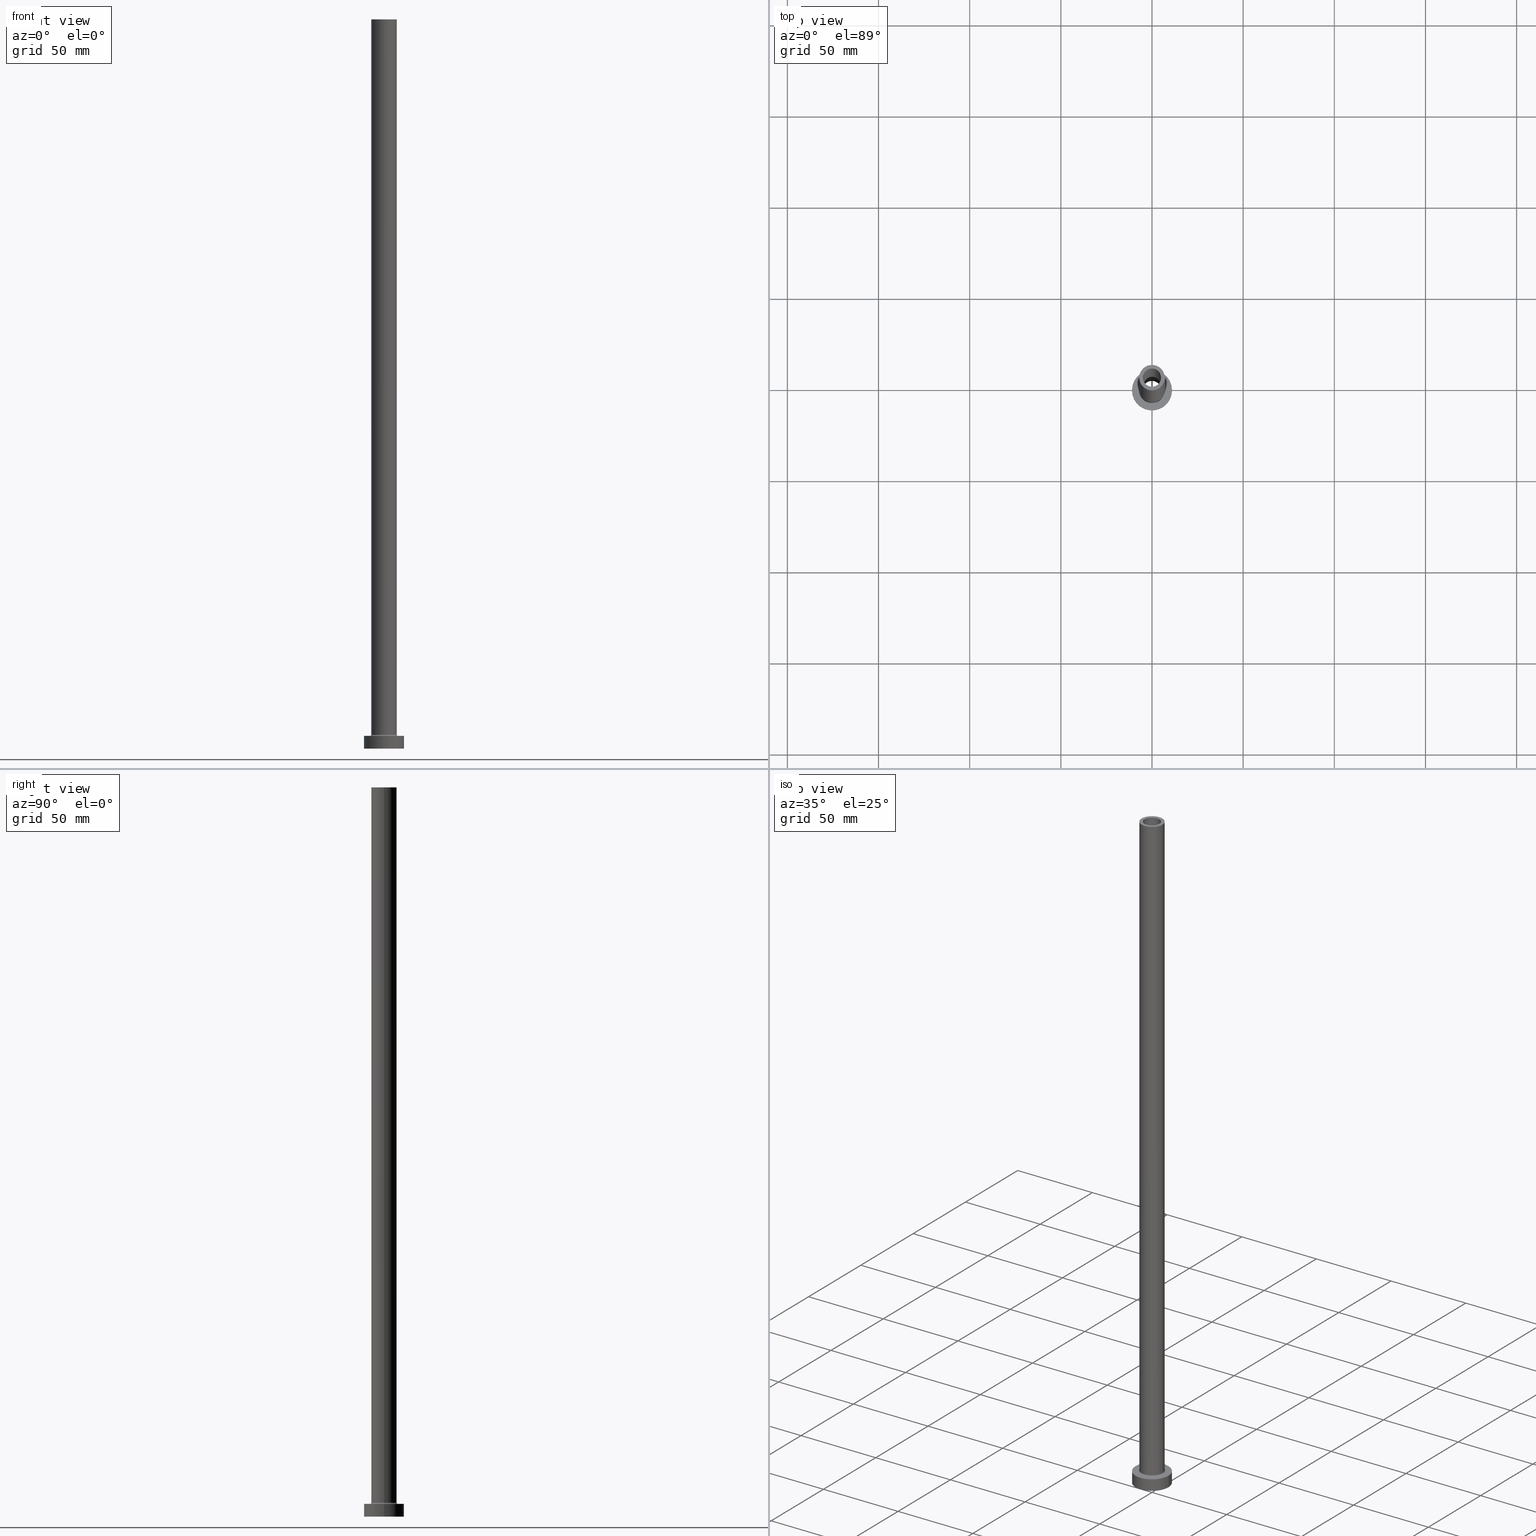
[diagram: canonical four-view strip — front | top / right | iso, engineering-drawing reading convention]
A machine part, canonical four-view strip (front | top / right | iso — engineering-drawing reading convention). The complete STEP part file that produces these views, byte-faithful:
ISO-10303-21;
HEADER;
FILE_DESCRIPTION (( 'STEP AP203' ),
    '1' );
FILE_NAME ('5fc1.STEP',
    '2023-02-13T10:06:38',
    ( '' ),
    ( '' ),
    'SwSTEP 2.0',
    'SolidWorks 2019',
    '' );
FILE_SCHEMA (( 'CONFIG_CONTROL_DESIGN' ));
ENDSEC;

DATA;
#1 = PERSON_AND_ORGANIZATION_ROLE ( 'design_owner' ) ;
#2 = ORIENTED_EDGE ( 'NONE', *, *, #397, .T. ) ;
#3 = EDGE_CURVE ( 'NONE', #28, #286, #308, .T. ) ;
#4 = DIRECTION ( 'NONE',  ( 0.000000000000000000, 0.000000000000000000, -1.000000000000000000 ) ) ;
#5 =( LENGTH_UNIT ( ) NAMED_UNIT ( * ) SI_UNIT ( .MILLI., .METRE. ) );
#6 = CARTESIAN_POINT ( 'NONE',  ( 0.000000000000000000, 0.000000000000000000, 355.0000000000000568 ) ) ;
#7 = CIRCLE ( 'NONE', #169, 5.000000000000000000 ) ;
#8 = AXIS2_PLACEMENT_3D ( 'NONE', #269, #91, #229 ) ;
#9 = APPROVAL_PERSON_ORGANIZATION ( #17, #247, #191 ) ;
#10 = CARTESIAN_POINT ( 'NONE',  ( 7.000000000000000888, 8.572527594031474176E-16, 400.0000000000000000 ) ) ;
#11 = FACE_OUTER_BOUND ( 'NONE', #349, .T. ) ;
#12 = DIRECTION ( 'NONE',  ( 0.000000000000000000, 0.000000000000000000, 1.000000000000000000 ) ) ;
#13 = ADVANCED_FACE ( 'NONE', ( #216 ), #292, .F. ) ;
#14 = AXIS2_PLACEMENT_3D ( 'NONE', #118, #245, #320 ) ;
#15 = CARTESIAN_POINT ( 'NONE',  ( 5.150000000000001243, 6.306931015608869596E-16, 0.000000000000000000 ) ) ;
#16 = EDGE_CURVE ( 'NONE', #79, #204, #105, .T. ) ;
#17 = PERSON_AND_ORGANIZATION ( #372, #279 ) ;
#18 = DIRECTION ( 'NONE',  ( -0.000000000000000000, -0.000000000000000000, -1.000000000000000000 ) ) ;
#19 = CARTESIAN_POINT ( 'NONE',  ( 11.00000000000000000, 1.347111479062088405E-15, 7.000000000000000000 ) ) ;
#20 = EDGE_CURVE ( 'NONE', #202, #414, #336, .T. ) ;
#21 = CIRCLE ( 'NONE', #221, 5.000000000000000000 ) ;
#22 = DIRECTION ( 'NONE',  ( 0.000000000000000000, 0.000000000000000000, 1.000000000000000000 ) ) ;
#23 = ORIENTED_EDGE ( 'NONE', *, *, #447, .T. ) ;
#24 = CARTESIAN_POINT ( 'NONE',  ( 5.000000000000000000, 6.123233995736765296E-16, 355.0000000000000568 ) ) ;
#25 = VERTEX_POINT ( 'NONE', #249 ) ;
#26 = ADVANCED_BREP_SHAPE_REPRESENTATION ( '5fc1', ( #370, #14 ), #95 ) ;
#27 = FACE_BOUND ( 'NONE', #92, .T. ) ;
#28 = VERTEX_POINT ( 'NONE', #426 ) ;
#29 = FACE_BOUND ( 'NONE', #417, .T. ) ;
#30 = EDGE_LOOP ( 'NONE', ( #185, #378 ) ) ;
#31 = DATE_AND_TIME ( #214, #162 ) ;
#32 = ORIENTED_EDGE ( 'NONE', *, *, #280, .F. ) ;
#33 = DIRECTION ( 'NONE',  ( -0.000000000000000000, -0.000000000000000000, -1.000000000000000000 ) ) ;
#34 = CC_DESIGN_PERSON_AND_ORGANIZATION_ASSIGNMENT ( #339, #258, ( #47 ) ) ;
#35 = VERTEX_POINT ( 'NONE', #77 ) ;
#36 = PERSON_AND_ORGANIZATION ( #372, #279 ) ;
#37 = DIRECTION ( 'NONE',  ( 1.000000000000000000, 0.000000000000000000, 0.000000000000000000 ) ) ;
#38 = CIRCLE ( 'NONE', #302, 7.000000000000000888 ) ;
#39 = PERSON_AND_ORGANIZATION ( #372, #279 ) ;
#40 = EDGE_LOOP ( 'NONE', ( #218, #455 ) ) ;
#41 = CARTESIAN_POINT ( 'NONE',  ( -7.700000000000001066, 9.429780353434621002E-16, 7.699999999999985079 ) ) ;
#42 = DIRECTION ( 'NONE',  ( 1.000000000000000000, 0.000000000000000000, 0.000000000000000000 ) ) ;
#43 = PRODUCT_RELATED_PRODUCT_CATEGORY ( 'detail', '', ( #120 ) ) ;
#44 = DIRECTION ( 'NONE',  ( 1.000000000000000000, 0.000000000000000000, 0.000000000000000000 ) ) ;
#45 = AXIS2_PLACEMENT_3D ( 'NONE', #393, #325, #37 ) ;
#46 = AXIS2_PLACEMENT_3D ( 'NONE', #59, #173, #273 ) ;
#47 = SECURITY_CLASSIFICATION ( '', '', #402 ) ;
#48 = DIRECTION ( 'NONE',  ( 1.000000000000000000, 0.000000000000000000, 0.000000000000000000 ) ) ;
#49 = CARTESIAN_POINT ( 'NONE',  ( 5.000000000000000000, 6.123233995736765296E-16, 400.0000000000000000 ) ) ;
#50 = ADVANCED_FACE ( 'NONE', ( #107 ), #361, .F. ) ;
#51 = DIRECTION ( 'NONE',  ( 0.000000000000000000, 0.000000000000000000, 1.000000000000000000 ) ) ;
#52 = CIRCLE ( 'NONE', #154, 11.00000000000000000 ) ;
#53 = CIRCLE ( 'NONE', #124, 7.700000000000001066 ) ;
#54 = CARTESIAN_POINT ( 'NONE',  ( 0.000000000000000000, 0.000000000000000000, 400.0000000000000000 ) ) ;
#55 = DIRECTION ( 'NONE',  ( 1.000000000000000000, 0.000000000000000000, -0.000000000000000000 ) ) ;
#56 = EDGE_CURVE ( 'NONE', #414, #202, #293, .T. ) ;
#57 = CC_DESIGN_PERSON_AND_ORGANIZATION_ASSIGNMENT ( #363, #248, ( #109 ) ) ;
#58 = EDGE_CURVE ( 'NONE', #286, #28, #52, .T. ) ;
#59 = CARTESIAN_POINT ( 'NONE',  ( 0.000000000000000000, 0.000000000000000000, 369.5663996924429284 ) ) ;
#60 = ORIENTED_EDGE ( 'NONE', *, *, #412, .F. ) ;
#61 = CC_DESIGN_SECURITY_CLASSIFICATION ( #47, ( #69 ) ) ;
#62 = AXIS2_PLACEMENT_3D ( 'NONE', #283, #178, #167 ) ;
#63 = CARTESIAN_POINT ( 'NONE',  ( 11.00000000000000000, 1.347111479062088405E-15, 7.000000000000000000 ) ) ;
#64 = CARTESIAN_POINT ( 'NONE',  ( 0.000000000000000000, 0.000000000000000000, 7.699999999999985079 ) ) ;
#65 = ORIENTED_EDGE ( 'NONE', *, *, #215, .T. ) ;
#66 = LINE ( 'NONE', #137, #184 ) ;
#67 = ORIENTED_EDGE ( 'NONE', *, *, #3, .F. ) ;
#68 = ORIENTED_EDGE ( 'NONE', *, *, #20, .F. ) ;
#69 = PRODUCT_DEFINITION_FORMATION_WITH_SPECIFIED_SOURCE ( 'LIBOVOLN�', '', #120, .NOT_KNOWN. ) ;
#70 = APPROVAL_ROLE ( '' ) ;
#71 = CARTESIAN_POINT ( 'NONE',  ( 0.000000000000000000, 0.000000000000000000, 400.0000000000000000 ) ) ;
#72 = EDGE_CURVE ( 'NONE', #354, #25, #7, .T. ) ;
#73 = ORIENTED_EDGE ( 'NONE', *, *, #264, .F. ) ;
#74 = APPROVAL_STATUS ( 'not_yet_approved' ) ;
#75 = VERTEX_POINT ( 'NONE', #319 ) ;
#76 = DIRECTION ( 'NONE',  ( -1.000000000000000000, 1.224646799147351975E-16, 0.000000000000000000 ) ) ;
#77 = CARTESIAN_POINT ( 'NONE',  ( -7.000000000000000888, 0.000000000000000000, 400.0000000000000000 ) ) ;
#78 = EDGE_CURVE ( 'NONE', #288, #142, #227, .T. ) ;
#79 = VERTEX_POINT ( 'NONE', #15 ) ;
#80 = CARTESIAN_POINT ( 'NONE',  ( 0.000000000000000000, 0.000000000000000000, 355.0000000000000568 ) ) ;
#81 = AXIS2_PLACEMENT_3D ( 'NONE', #246, #211, #359 ) ;
#82 = DATE_TIME_ROLE ( 'classification_date' ) ;
#83 = CARTESIAN_POINT ( 'NONE',  ( -7.000000000000000888, 0.000000000000000000, 400.0000000000000000 ) ) ;
#84 = DIRECTION ( 'NONE',  ( 0.000000000000000000, 0.000000000000000000, -1.000000000000000000 ) ) ;
#85 = DIRECTION ( 'NONE',  ( 1.000000000000000000, 0.000000000000000000, 0.000000000000000000 ) ) ;
#86 = EDGE_CURVE ( 'NONE', #288, #25, #127, .T. ) ;
#87 = AXIS2_PLACEMENT_3D ( 'NONE', #251, #422, #213 ) ;
#88 = AXIS2_PLACEMENT_3D ( 'NONE', #350, #197, #133 ) ;
#89 = CARTESIAN_POINT ( 'NONE',  ( -5.000000000000000000, 0.000000000000000000, 400.0000000000000000 ) ) ;
#90 = CC_DESIGN_DATE_AND_TIME_ASSIGNMENT ( #126, #82, ( #47 ) ) ;
#91 = DIRECTION ( 'NONE',  ( -0.000000000000000000, -0.000000000000000000, -1.000000000000000000 ) ) ;
#92 = EDGE_LOOP ( 'NONE', ( #119, #419 ) ) ;
#93 = CARTESIAN_POINT ( 'NONE',  ( 7.000000000000000888, 8.572527594031474176E-16, 7.699999999999985079 ) ) ;
#94 = VERTEX_POINT ( 'NONE', #10 ) ;
#95 =( GEOMETRIC_REPRESENTATION_CONTEXT ( 3 ) GLOBAL_UNCERTAINTY_ASSIGNED_CONTEXT ( ( #99 ) ) GLOBAL_UNIT_ASSIGNED_CONTEXT ( ( #5, #427, #430 ) ) REPRESENTATION_CONTEXT ( 'NONE', 'WORKASPACE' ) );
#96 = EDGE_CURVE ( 'NONE', #75, #136, #323, .T. ) ;
#97 = FACE_OUTER_BOUND ( 'NONE', #98, .T. ) ;
#98 = EDGE_LOOP ( 'NONE', ( #311, #386, #102, #172 ) ) ;
#99 = UNCERTAINTY_MEASURE_WITH_UNIT (LENGTH_MEASURE( 1.000000000000000082E-05 ), #5, 'distance_accuracy_value', 'NONE');
#100 = EDGE_CURVE ( 'NONE', #94, #35, #344, .T. ) ;
#101 = PLANE ( 'NONE',  #62 ) ;
#102 = ORIENTED_EDGE ( 'NONE', *, *, #373, .T. ) ;
#103 = CYLINDRICAL_SURFACE ( 'NONE', #207, 7.000000000000000888 ) ;
#104 = ORIENTED_EDGE ( 'NONE', *, *, #219, .T. ) ;
#105 = CIRCLE ( 'NONE', #294, 5.150000000000001243 ) ;
#106 = VECTOR ( 'NONE', #267, 1000.000000000000000 ) ;
#107 = FACE_OUTER_BOUND ( 'NONE', #424, .T. ) ;
#108 = ADVANCED_FACE ( 'NONE', ( #340, #165 ), #403, .F. ) ;
#109 = PRODUCT_DEFINITION ( 'NEZN�M�', '', #69, #257 ) ;
#110 = ADVANCED_FACE ( 'NONE', ( #306 ), #371, .F. ) ;
#111 = APPROVAL_DATE_TIME ( #31, #241 ) ;
#112 = DIRECTION ( 'NONE',  ( 1.000000000000000000, 0.000000000000000000, 0.000000000000000000 ) ) ;
#113 = PERSON_AND_ORGANIZATION_ROLE ( 'design_supplier' ) ;
#114 = VERTEX_POINT ( 'NONE', #266 ) ;
#115 = APPLICATION_PROTOCOL_DEFINITION ( 'international standard', 'config_control_design', 1994, #276 ) ;
#116 = EDGE_LOOP ( 'NONE', ( #380, #68 ) ) ;
#117 = VECTOR ( 'NONE', #226, 1000.000000000000000 ) ;
#118 = CARTESIAN_POINT ( 'NONE',  ( 0.000000000000000000, 0.000000000000000000, 0.000000000000000000 ) ) ;
#119 = ORIENTED_EDGE ( 'NONE', *, *, #382, .F. ) ;
#120 = PRODUCT ( '5fc1', '5fc1', '', ( #253 ) ) ;
#121 = DIRECTION ( 'NONE',  ( 1.000000000000000000, 0.000000000000000000, 0.000000000000000000 ) ) ;
#122 = CYLINDRICAL_SURFACE ( 'NONE', #453, 11.00000000000000000 ) ;
#123 = EDGE_CURVE ( 'NONE', #142, #288, #21, .T. ) ;
#124 = AXIS2_PLACEMENT_3D ( 'NONE', #454, #418, #239 ) ;
#125 = EDGE_CURVE ( 'NONE', #25, #354, #156, .T. ) ;
#126 = DATE_AND_TIME ( #164, #168 ) ;
#127 = LINE ( 'NONE', #89, #396 ) ;
#128 = CALENDAR_DATE ( 2023, 13, 2 ) ;
#129 = DIRECTION ( 'NONE',  ( 0.000000000000000000, 0.000000000000000000, -1.000000000000000000 ) ) ;
#130 = CARTESIAN_POINT ( 'NONE',  ( -11.00000000000000000, 0.000000000000000000, 7.000000000000000000 ) ) ;
#131 = CC_DESIGN_PERSON_AND_ORGANIZATION_ASSIGNMENT ( #425, #113, ( #69 ) ) ;
#132 = AXIS2_PLACEMENT_3D ( 'NONE', #291, #33, #324 ) ;
#133 = DIRECTION ( 'NONE',  ( 1.000000000000000000, 0.000000000000000000, 0.000000000000000000 ) ) ;
#134 = EDGE_LOOP ( 'NONE', ( #394, #313, #255, #452 ) ) ;
#135 = FACE_OUTER_BOUND ( 'NONE', #151, .T. ) ;
#136 = VERTEX_POINT ( 'NONE', #404 ) ;
#137 = CARTESIAN_POINT ( 'NONE',  ( 7.000000000000000888, 8.572527594031474176E-16, 400.0000000000000000 ) ) ;
#138 = ORIENTED_EDGE ( 'NONE', *, *, #3, .T. ) ;
#139 = EDGE_CURVE ( 'NONE', #414, #204, #337, .T. ) ;
#140 = AXIS2_PLACEMENT_3D ( 'NONE', #358, #328, #366 ) ;
#141 = DIRECTION ( 'NONE',  ( -1.000000000000000000, 0.000000000000000000, 0.000000000000000000 ) ) ;
#142 = VERTEX_POINT ( 'NONE', #407 ) ;
#143 = PLANE ( 'NONE',  #439 ) ;
#144 = ORIENTED_EDGE ( 'NONE', *, *, #397, .F. ) ;
#145 = COORDINATED_UNIVERSAL_TIME_OFFSET ( 1, 0, .AHEAD. ) ;
#146 = ORIENTED_EDGE ( 'NONE', *, *, #347, .F. ) ;
#147 = AXIS2_PLACEMENT_3D ( 'NONE', #375, #18, #194 ) ;
#148 = CARTESIAN_POINT ( 'NONE',  ( 0.000000000000000000, 0.000000000000000000, 0.000000000000000000 ) ) ;
#149 = APPROVAL_ROLE ( '' ) ;
#150 = ORIENTED_EDGE ( 'NONE', *, *, #58, .T. ) ;
#151 = EDGE_LOOP ( 'NONE', ( #73, #351, #315, #271 ) ) ;
#152 = CC_DESIGN_APPROVAL ( #241, ( #109 ) ) ;
#153 = DIRECTION ( 'NONE',  ( 1.000000000000000000, 0.000000000000000000, 0.000000000000000000 ) ) ;
#154 = AXIS2_PLACEMENT_3D ( 'NONE', #256, #188, #329 ) ;
#155 = DIRECTION ( 'NONE',  ( 0.000000000000000000, 0.000000000000000000, 1.000000000000000000 ) ) ;
#156 = CIRCLE ( 'NONE', #401, 5.000000000000000000 ) ;
#157 = VECTOR ( 'NONE', #84, 1000.000000000000000 ) ;
#158 = FACE_OUTER_BOUND ( 'NONE', #450, .T. ) ;
#159 = ADVANCED_FACE ( 'NONE', ( #11 ), #122, .T. ) ;
#160 = DIRECTION ( 'NONE',  ( 1.000000000000000000, 0.000000000000000000, -0.000000000000000000 ) ) ;
#161 = DIRECTION ( 'NONE',  ( 0.000000000000000000, 0.000000000000000000, 1.000000000000000000 ) ) ;
#162 = LOCAL_TIME ( 11, 6, 38.00000000000000000, #353 ) ;
#163 = AXIS2_PLACEMENT_3D ( 'NONE', #242, #22, #55 ) ;
#164 = CALENDAR_DATE ( 2023, 13, 2 ) ;
#165 = FACE_OUTER_BOUND ( 'NONE', #116, .T. ) ;
#166 = CARTESIAN_POINT ( 'NONE',  ( -7.700000000000001066, 9.429780353434621002E-16, 6.999999999999992006 ) ) ;
#167 = DIRECTION ( 'NONE',  ( 1.000000000000000000, 0.000000000000000000, -0.000000000000000000 ) ) ;
#168 = LOCAL_TIME ( 11, 6, 38.00000000000000000, #265 ) ;
#169 = AXIS2_PLACEMENT_3D ( 'NONE', #6, #399, #44 ) ;
#170 = LOCAL_TIME ( 11, 6, 38.00000000000000000, #145 ) ;
#171 = DIRECTION ( 'NONE',  ( -0.000000000000000000, -0.000000000000000000, -1.000000000000000000 ) ) ;
#172 = ORIENTED_EDGE ( 'NONE', *, *, #215, .F. ) ;
#173 = DIRECTION ( 'NONE',  ( 0.000000000000000000, 0.000000000000000000, -1.000000000000000000 ) ) ;
#174 = ORIENTED_EDGE ( 'NONE', *, *, #447, .F. ) ;
#175 = CARTESIAN_POINT ( 'NONE',  ( -7.000000000000000888, 0.000000000000000000, 7.699999999999985079 ) ) ;
#176 = ORIENTED_EDGE ( 'NONE', *, *, #433, .F. ) ;
#177 = VECTOR ( 'NONE', #129, 1000.000000000000000 ) ;
#178 = DIRECTION ( 'NONE',  ( 0.000000000000000000, 0.000000000000000000, 1.000000000000000000 ) ) ;
#179 = EDGE_LOOP ( 'NONE', ( #146, #217, #65, #23 ) ) ;
#180 = COORDINATED_UNIVERSAL_TIME_OFFSET ( 1, 0, .AHEAD. ) ;
#181 = VERTEX_POINT ( 'NONE', #166 ) ;
#182 = ORIENTED_EDGE ( 'NONE', *, *, #262, .F. ) ;
#183 = CARTESIAN_POINT ( 'NONE',  ( -5.150000000000001243, 0.000000000000000000, 355.0000000000000568 ) ) ;
#184 = VECTOR ( 'NONE', #342, 1000.000000000000000 ) ;
#185 = ORIENTED_EDGE ( 'NONE', *, *, #78, .F. ) ;
#186 = ADVANCED_FACE ( 'NONE', ( #228 ), #334, .T. ) ;
#187 = ORIENTED_EDGE ( 'NONE', *, *, #200, .T. ) ;
#188 = DIRECTION ( 'NONE',  ( 0.000000000000000000, 0.000000000000000000, 1.000000000000000000 ) ) ;
#189 = DIRECTION ( 'NONE',  ( -1.000000000000000000, 0.000000000000000000, 0.000000000000000000 ) ) ;
#190 = AXIS2_PLACEMENT_3D ( 'NONE', #41, #458, #76 ) ;
#191 = APPROVAL_ROLE ( '' ) ;
#192 = DIRECTION ( 'NONE',  ( 0.000000000000000000, 0.000000000000000000, -1.000000000000000000 ) ) ;
#193 = CARTESIAN_POINT ( 'NONE',  ( 0.000000000000000000, 0.000000000000000000, 0.000000000000000000 ) ) ;
#194 = DIRECTION ( 'NONE',  ( -1.000000000000000000, 0.000000000000000000, 0.000000000000000000 ) ) ;
#195 = AXIS2_PLACEMENT_3D ( 'NONE', #193, #161, #300 ) ;
#196 = DIRECTION ( 'NONE',  ( 0.000000000000000000, 0.000000000000000000, 1.000000000000000000 ) ) ;
#197 = DIRECTION ( 'NONE',  ( 0.000000000000000000, 0.000000000000000000, 1.000000000000000000 ) ) ;
#198 = ORIENTED_EDGE ( 'NONE', *, *, #412, .T. ) ;
#199 = CIRCLE ( 'NONE', #338, 7.000000000000000888 ) ;
#200 = EDGE_CURVE ( 'NONE', #142, #354, #441, .T. ) ;
#201 = CYLINDRICAL_SURFACE ( 'NONE', #316, 7.000000000000000888 ) ;
#202 = VERTEX_POINT ( 'NONE', #405 ) ;
#203 = DIRECTION ( 'NONE',  ( 0.000000000000000000, 0.000000000000000000, 1.000000000000000000 ) ) ;
#204 = VERTEX_POINT ( 'NONE', #260 ) ;
#205 = CARTESIAN_POINT ( 'NONE',  ( 0.000000000000000000, 0.000000000000000000, 400.0000000000000000 ) ) ;
#206 = EDGE_LOOP ( 'NONE', ( #391, #187, #388, #445 ) ) ;
#207 = AXIS2_PLACEMENT_3D ( 'NONE', #205, #171, #237 ) ;
#208 = PERSON_AND_ORGANIZATION ( #372, #279 ) ;
#209 = ORIENTED_EDGE ( 'NONE', *, *, #373, .F. ) ;
#210 = PERSON_AND_ORGANIZATION_ROLE ( 'creator' ) ;
#211 = DIRECTION ( 'NONE',  ( 0.000000000000000000, 0.000000000000000000, 1.000000000000000000 ) ) ;
#212 = DATE_TIME_ROLE ( 'creation_date' ) ;
#213 = DIRECTION ( 'NONE',  ( 1.000000000000000000, 0.000000000000000000, 0.000000000000000000 ) ) ;
#214 = CALENDAR_DATE ( 2023, 13, 2 ) ;
#215 = EDGE_CURVE ( 'NONE', #35, #298, #442, .T. ) ;
#216 = FACE_OUTER_BOUND ( 'NONE', #206, .T. ) ;
#217 = ORIENTED_EDGE ( 'NONE', *, *, #250, .F. ) ;
#218 = ORIENTED_EDGE ( 'NONE', *, *, #96, .F. ) ;
#219 = EDGE_CURVE ( 'NONE', #28, #75, #376, .T. ) ;
#220 = DIRECTION ( 'NONE',  ( 0.000000000000000000, 0.000000000000000000, 1.000000000000000000 ) ) ;
#221 = AXIS2_PLACEMENT_3D ( 'NONE', #54, #304, #259 ) ;
#222 = COORDINATED_UNIVERSAL_TIME_OFFSET ( 1, 0, .AHEAD. ) ;
#223 = CARTESIAN_POINT ( 'NONE',  ( 0.000000000000000000, 0.000000000000000000, 400.0000000000000000 ) ) ;
#224 = APPROVAL_STATUS ( 'not_yet_approved' ) ;
#225 = DIRECTION ( 'NONE',  ( -0.000000000000000000, -0.000000000000000000, -1.000000000000000000 ) ) ;
#226 = DIRECTION ( 'NONE',  ( -0.000000000000000000, -0.000000000000000000, -1.000000000000000000 ) ) ;
#227 = CIRCLE ( 'NONE', #81, 5.000000000000000000 ) ;
#228 = FACE_OUTER_BOUND ( 'NONE', #411, .T. ) ;
#229 = DIRECTION ( 'NONE',  ( 1.000000000000000000, 0.000000000000000000, 0.000000000000000000 ) ) ;
#230 = ORIENTED_EDGE ( 'NONE', *, *, #58, .F. ) ;
#231 = ADVANCED_FACE ( 'NONE', ( #158 ), #406, .F. ) ;
#232 = DIRECTION ( 'NONE',  ( -0.000000000000000000, -0.000000000000000000, -1.000000000000000000 ) ) ;
#233 = ORIENTED_EDGE ( 'NONE', *, *, #56, .T. ) ;
#234 = CC_DESIGN_APPROVAL ( #247, ( #47 ) ) ;
#235 = CIRCLE ( 'NONE', #140, 0.7000000000000000666 ) ;
#236 = CC_DESIGN_PERSON_AND_ORGANIZATION_ASSIGNMENT ( #390, #1, ( #120 ) ) ;
#237 = DIRECTION ( 'NONE',  ( -1.000000000000000000, 0.000000000000000000, 0.000000000000000000 ) ) ;
#238 = ORIENTED_EDGE ( 'NONE', *, *, #72, .T. ) ;
#239 = DIRECTION ( 'NONE',  ( 1.000000000000000000, 0.000000000000000000, 0.000000000000000000 ) ) ;
#240 = ORIENTED_EDGE ( 'NONE', *, *, #250, .T. ) ;
#241 = APPROVAL ( #74, 'NEUR�EN�' ) ;
#242 = CARTESIAN_POINT ( 'NONE',  ( 0.000000000000000000, 0.000000000000000000, 0.000000000000000000 ) ) ;
#243 = ORIENTED_EDGE ( 'NONE', *, *, #100, .T. ) ;
#244 = TOROIDAL_SURFACE ( 'NONE', #429, 7.700000000000001066, 0.6999999999999999556 ) ;
#245 = DIRECTION ( 'NONE',  ( 0.000000000000000000, 0.000000000000000000, 1.000000000000000000 ) ) ;
#246 = CARTESIAN_POINT ( 'NONE',  ( 0.000000000000000000, 0.000000000000000000, 400.0000000000000000 ) ) ;
#247 = APPROVAL ( #224, 'NEUR�EN�' ) ;
#248 = PERSON_AND_ORGANIZATION_ROLE ( 'creator' ) ;
#249 = CARTESIAN_POINT ( 'NONE',  ( -5.000000000000000000, 0.000000000000000000, 355.0000000000000568 ) ) ;
#250 = EDGE_CURVE ( 'NONE', #35, #94, #199, .T. ) ;
#251 = CARTESIAN_POINT ( 'NONE',  ( 0.000000000000000000, 0.000000000000000000, 355.0000000000000568 ) ) ;
#252 = AXIS2_PLACEMENT_3D ( 'NONE', #327, #4, #368 ) ;
#253 = MECHANICAL_CONTEXT ( 'NONE', #369, 'mechanical' ) ;
#254 = VECTOR ( 'NONE', #232, 1000.000000000000000 ) ;
#255 = ORIENTED_EDGE ( 'NONE', *, *, #86, .T. ) ;
#256 = CARTESIAN_POINT ( 'NONE',  ( 0.000000000000000000, 0.000000000000000000, 7.000000000000000000 ) ) ;
#257 = DESIGN_CONTEXT ( 'detailed design', #276, 'design' ) ;
#258 = PERSON_AND_ORGANIZATION_ROLE ( 'classification_officer' ) ;
#259 = DIRECTION ( 'NONE',  ( 1.000000000000000000, 0.000000000000000000, 0.000000000000000000 ) ) ;
#260 = CARTESIAN_POINT ( 'NONE',  ( -5.150000000000001243, 0.000000000000000000, 0.000000000000000000 ) ) ;
#261 = AXIS2_PLACEMENT_3D ( 'NONE', #299, #434, #121 ) ;
#262 = EDGE_CURVE ( 'NONE', #286, #136, #416, .T. ) ;
#263 = CARTESIAN_POINT ( 'NONE',  ( 0.000000000000000000, 0.000000000000000000, 400.0000000000000000 ) ) ;
#264 = EDGE_CURVE ( 'NONE', #202, #79, #312, .T. ) ;
#265 = COORDINATED_UNIVERSAL_TIME_OFFSET ( 1, 0, .AHEAD. ) ;
#266 = CARTESIAN_POINT ( 'NONE',  ( 7.700000000000001066, 0.000000000000000000, 6.999999999999992006 ) ) ;
#267 = DIRECTION ( 'NONE',  ( -0.000000000000000000, -0.000000000000000000, -1.000000000000000000 ) ) ;
#268 = CIRCLE ( 'NONE', #132, 7.700000000000001066 ) ;
#269 = CARTESIAN_POINT ( 'NONE',  ( 0.000000000000000000, 0.000000000000000000, 0.000000000000000000 ) ) ;
#270 = ADVANCED_FACE ( 'NONE', ( #135 ), #446, .F. ) ;
#271 = ORIENTED_EDGE ( 'NONE', *, *, #382, .T. ) ;
#272 = CC_DESIGN_PERSON_AND_ORGANIZATION_ASSIGNMENT ( #36, #210, ( #69 ) ) ;
#273 = DIRECTION ( 'NONE',  ( -1.000000000000000000, 0.000000000000000000, 0.000000000000000000 ) ) ;
#274 = VERTEX_POINT ( 'NONE', #93 ) ;
#275 = ADVANCED_FACE ( 'NONE', ( #29, #383 ), #101, .T. ) ;
#276 = APPLICATION_CONTEXT ( 'configuration controlled 3d designs of mechanical parts and assemblies' ) ;
#277 = FACE_BOUND ( 'NONE', #30, .T. ) ;
#278 = ORIENTED_EDGE ( 'NONE', *, *, #219, .F. ) ;
#279 = ORGANIZATION ( 'NEUR�EN�', 'NEUR�EN�', '' ) ;
#280 = EDGE_CURVE ( 'NONE', #181, #114, #53, .T. ) ;
#281 = FACE_OUTER_BOUND ( 'NONE', #179, .T. ) ;
#282 = EDGE_LOOP ( 'NONE', ( #138, #150 ) ) ;
#283 = CARTESIAN_POINT ( 'NONE',  ( 0.000000000000000000, 0.000000000000000000, 7.000000000000000000 ) ) ;
#284 = ORIENTED_EDGE ( 'NONE', *, *, #264, .T. ) ;
#285 = DATE_AND_TIME ( #360, #170 ) ;
#286 = VERTEX_POINT ( 'NONE', #19 ) ;
#287 = CARTESIAN_POINT ( 'NONE',  ( 0.000000000000000000, 0.000000000000000000, 7.699999999999985079 ) ) ;
#288 = VERTEX_POINT ( 'NONE', #345 ) ;
#289 = CALENDAR_DATE ( 2023, 13, 2 ) ;
#290 = DIRECTION ( 'NONE',  ( -0.000000000000000000, -0.000000000000000000, -1.000000000000000000 ) ) ;
#291 = CARTESIAN_POINT ( 'NONE',  ( 0.000000000000000000, 0.000000000000000000, 7.000000000000000000 ) ) ;
#292 = CYLINDRICAL_SURFACE ( 'NONE', #438, 5.000000000000000000 ) ;
#293 = CIRCLE ( 'NONE', #395, 5.150000000000001243 ) ;
#294 = AXIS2_PLACEMENT_3D ( 'NONE', #148, #290, #112 ) ;
#295 = DIRECTION ( 'NONE',  ( 0.000000000000000000, 0.000000000000000000, 1.000000000000000000 ) ) ;
#296 = CIRCLE ( 'NONE', #88, 7.000000000000000888 ) ;
#297 = APPROVAL ( #456, 'NEUR�EN�' ) ;
#298 = VERTEX_POINT ( 'NONE', #175 ) ;
#299 = CARTESIAN_POINT ( 'NONE',  ( 0.000000000000000000, 0.000000000000000000, 7.699999999999985079 ) ) ;
#300 = DIRECTION ( 'NONE',  ( 1.000000000000000000, 0.000000000000000000, 0.000000000000000000 ) ) ;
#301 = DIRECTION ( 'NONE',  ( 1.000000000000000000, 0.000000000000000000, 0.000000000000000000 ) ) ;
#302 = AXIS2_PLACEMENT_3D ( 'NONE', #287, #295, #153 ) ;
#303 = EDGE_CURVE ( 'NONE', #136, #75, #381, .T. ) ;
#304 = DIRECTION ( 'NONE',  ( 0.000000000000000000, 0.000000000000000000, 1.000000000000000000 ) ) ;
#305 = DATE_AND_TIME ( #128, #362 ) ;
#306 = FACE_OUTER_BOUND ( 'NONE', #134, .T. ) ;
#307 = FACE_OUTER_BOUND ( 'NONE', #346, .T. ) ;
#308 = CIRCLE ( 'NONE', #45, 11.00000000000000000 ) ;
#309 = AXIS2_PLACEMENT_3D ( 'NONE', #263, #51, #301 ) ;
#310 = DIRECTION ( 'NONE',  ( 0.000000000000000000, 0.000000000000000000, -1.000000000000000000 ) ) ;
#311 = ORIENTED_EDGE ( 'NONE', *, *, #100, .F. ) ;
#312 = LINE ( 'NONE', #410, #461 ) ;
#313 = ORIENTED_EDGE ( 'NONE', *, *, #123, .T. ) ;
#314 = PLANE ( 'NONE',  #163 ) ;
#315 = ORIENTED_EDGE ( 'NONE', *, *, #139, .T. ) ;
#316 = AXIS2_PLACEMENT_3D ( 'NONE', #341, #449, #141 ) ;
#317 = CARTESIAN_POINT ( 'NONE',  ( 0.000000000000000000, 0.000000000000000000, 400.0000000000000000 ) ) ;
#318 = EDGE_LOOP ( 'NONE', ( #384, #238 ) ) ;
#319 = CARTESIAN_POINT ( 'NONE',  ( -11.00000000000000000, 0.000000000000000000, 0.000000000000000000 ) ) ;
#320 = DIRECTION ( 'NONE',  ( 1.000000000000000000, 0.000000000000000000, 0.000000000000000000 ) ) ;
#321 = ADVANCED_FACE ( 'NONE', ( #281 ), #201, .T. ) ;
#322 = ORIENTED_EDGE ( 'NONE', *, *, #96, .T. ) ;
#323 = CIRCLE ( 'NONE', #195, 11.00000000000000000 ) ;
#324 = DIRECTION ( 'NONE',  ( 1.000000000000000000, 0.000000000000000000, 0.000000000000000000 ) ) ;
#325 = DIRECTION ( 'NONE',  ( 0.000000000000000000, 0.000000000000000000, 1.000000000000000000 ) ) ;
#326 = ADVANCED_FACE ( 'NONE', ( #307 ), #244, .F. ) ;
#327 = CARTESIAN_POINT ( 'NONE',  ( 0.000000000000000000, 0.000000000000000000, 369.5663996924429284 ) ) ;
#328 = DIRECTION ( 'NONE',  ( 0.000000000000000000, -1.000000000000000000, 0.000000000000000000 ) ) ;
#329 = DIRECTION ( 'NONE',  ( 1.000000000000000000, 0.000000000000000000, 0.000000000000000000 ) ) ;
#330 = CC_DESIGN_APPROVAL ( #297, ( #69 ) ) ;
#331 = AXIS2_PLACEMENT_3D ( 'NONE', #379, #377, #408 ) ;
#332 = CARTESIAN_POINT ( 'NONE',  ( 0.000000000000000000, 0.000000000000000000, 355.0000000000000568 ) ) ;
#333 = CARTESIAN_POINT ( 'NONE',  ( -5.150000000000001243, 0.000000000000000000, 369.5663996924429284 ) ) ;
#334 = CYLINDRICAL_SURFACE ( 'NONE', #147, 11.00000000000000000 ) ;
#335 = APPROVAL_DATE_TIME ( #305, #247 ) ;
#336 = CIRCLE ( 'NONE', #87, 5.150000000000001243 ) ;
#337 = LINE ( 'NONE', #333, #157 ) ;
#338 = AXIS2_PLACEMENT_3D ( 'NONE', #223, #220, #48 ) ;
#339 = PERSON_AND_ORGANIZATION ( #372, #279 ) ;
#340 = FACE_BOUND ( 'NONE', #318, .T. ) ;
#341 = CARTESIAN_POINT ( 'NONE',  ( 0.000000000000000000, 0.000000000000000000, 400.0000000000000000 ) ) ;
#342 = DIRECTION ( 'NONE',  ( -0.000000000000000000, -0.000000000000000000, -1.000000000000000000 ) ) ;
#343 = EDGE_LOOP ( 'NONE', ( #240, #243 ) ) ;
#344 = CIRCLE ( 'NONE', #309, 7.000000000000000888 ) ;
#345 = CARTESIAN_POINT ( 'NONE',  ( -5.000000000000000000, 0.000000000000000000, 400.0000000000000000 ) ) ;
#346 = EDGE_LOOP ( 'NONE', ( #174, #367, #60, #144 ) ) ;
#347 = EDGE_CURVE ( 'NONE', #94, #274, #66, .T. ) ;
#348 = FACE_OUTER_BOUND ( 'NONE', #343, .T. ) ;
#349 = EDGE_LOOP ( 'NONE', ( #182, #67, #104, #322 ) ) ;
#350 = CARTESIAN_POINT ( 'NONE',  ( 0.000000000000000000, 0.000000000000000000, 7.699999999999985079 ) ) ;
#351 = ORIENTED_EDGE ( 'NONE', *, *, #20, .T. ) ;
#352 = CIRCLE ( 'NONE', #8, 5.150000000000001243 ) ;
#353 = COORDINATED_UNIVERSAL_TIME_OFFSET ( 1, 0, .AHEAD. ) ;
#354 = VERTEX_POINT ( 'NONE', #24 ) ;
#355 = ADVANCED_FACE ( 'NONE', ( #277, #348 ), #143, .T. ) ;
#356 = CC_DESIGN_DATE_AND_TIME_ASSIGNMENT ( #392, #212, ( #109 ) ) ;
#357 = ADVANCED_FACE ( 'NONE', ( #97 ), #103, .T. ) ;
#358 = CARTESIAN_POINT ( 'NONE',  ( 7.700000000000001066, 0.000000000000000000, 7.699999999999985079 ) ) ;
#359 = DIRECTION ( 'NONE',  ( 1.000000000000000000, 0.000000000000000000, 0.000000000000000000 ) ) ;
#360 = CALENDAR_DATE ( 2023, 13, 2 ) ;
#361 = CYLINDRICAL_SURFACE ( 'NONE', #252, 5.150000000000001243 ) ;
#362 = LOCAL_TIME ( 11, 6, 38.00000000000000000, #222 ) ;
#363 = PERSON_AND_ORGANIZATION ( #372, #279 ) ;
#364 = CARTESIAN_POINT ( 'NONE',  ( 0.000000000000000000, 0.000000000000000000, 355.0000000000000568 ) ) ;
#365 = ADVANCED_FACE ( 'NONE', ( #27, #451 ), #314, .F. ) ;
#366 = DIRECTION ( 'NONE',  ( 0.000000000000000000, 0.000000000000000000, -1.000000000000000000 ) ) ;
#367 = ORIENTED_EDGE ( 'NONE', *, *, #433, .T. ) ;
#368 = DIRECTION ( 'NONE',  ( -1.000000000000000000, 0.000000000000000000, 0.000000000000000000 ) ) ;
#369 = APPLICATION_CONTEXT ( 'configuration controlled 3d designs of mechanical parts and assemblies' ) ;
#370 = MANIFOLD_SOLID_BREP ( 'Odebrat vysunut�m4', #460 ) ;
#371 = CYLINDRICAL_SURFACE ( 'NONE', #415, 5.000000000000000000 ) ;
#372 = PERSON ( 'NEUR�EN�', 'NEUR�EN�', 'NEUR�EN�', ('NEUR�EN�'), ('NEUR�EN�'), ('NEUR�EN�') ) ;
#373 = EDGE_CURVE ( 'NONE', #274, #298, #296, .T. ) ;
#374 = CARTESIAN_POINT ( 'NONE',  ( 0.000000000000000000, 0.000000000000000000, 7.000000000000000000 ) ) ;
#375 = CARTESIAN_POINT ( 'NONE',  ( 0.000000000000000000, 0.000000000000000000, 7.000000000000000000 ) ) ;
#376 = LINE ( 'NONE', #130, #106 ) ;
#377 = DIRECTION ( 'NONE',  ( 0.000000000000000000, 0.000000000000000000, 1.000000000000000000 ) ) ;
#378 = ORIENTED_EDGE ( 'NONE', *, *, #123, .F. ) ;
#379 = CARTESIAN_POINT ( 'NONE',  ( 0.000000000000000000, 0.000000000000000000, 0.000000000000000000 ) ) ;
#380 = ORIENTED_EDGE ( 'NONE', *, *, #56, .F. ) ;
#381 = CIRCLE ( 'NONE', #331, 11.00000000000000000 ) ;
#382 = EDGE_CURVE ( 'NONE', #204, #79, #352, .T. ) ;
#383 = FACE_OUTER_BOUND ( 'NONE', #282, .T. ) ;
#384 = ORIENTED_EDGE ( 'NONE', *, *, #125, .T. ) ;
#385 = DIRECTION ( 'NONE',  ( 1.000000000000000000, 0.000000000000000000, 0.000000000000000000 ) ) ;
#386 = ORIENTED_EDGE ( 'NONE', *, *, #347, .T. ) ;
#387 = APPLICATION_PROTOCOL_DEFINITION ( 'international standard', 'config_control_design', 1994, #369 ) ;
#388 = ORIENTED_EDGE ( 'NONE', *, *, #125, .F. ) ;
#389 = CIRCLE ( 'NONE', #190, 0.7000000000000000666 ) ;
#390 = PERSON_AND_ORGANIZATION ( #372, #279 ) ;
#391 = ORIENTED_EDGE ( 'NONE', *, *, #78, .T. ) ;
#392 = DATE_AND_TIME ( #289, #437 ) ;
#393 = CARTESIAN_POINT ( 'NONE',  ( 0.000000000000000000, 0.000000000000000000, 7.000000000000000000 ) ) ;
#394 = ORIENTED_EDGE ( 'NONE', *, *, #200, .F. ) ;
#395 = AXIS2_PLACEMENT_3D ( 'NONE', #364, #155, #42 ) ;
#396 = VECTOR ( 'NONE', #400, 1000.000000000000000 ) ;
#397 = EDGE_CURVE ( 'NONE', #274, #114, #235, .T. ) ;
#398 = DIRECTION ( 'NONE',  ( -1.000000000000000000, 0.000000000000000000, 0.000000000000000000 ) ) ;
#399 = DIRECTION ( 'NONE',  ( 0.000000000000000000, 0.000000000000000000, 1.000000000000000000 ) ) ;
#400 = DIRECTION ( 'NONE',  ( 0.000000000000000000, 0.000000000000000000, -1.000000000000000000 ) ) ;
#401 = AXIS2_PLACEMENT_3D ( 'NONE', #80, #196, #85 ) ;
#402 = SECURITY_CLASSIFICATION_LEVEL ( 'unclassified' ) ;
#403 = PLANE ( 'NONE',  #423 ) ;
#404 = CARTESIAN_POINT ( 'NONE',  ( 11.00000000000000000, 1.347111479062088405E-15, 0.000000000000000000 ) ) ;
#405 = CARTESIAN_POINT ( 'NONE',  ( 5.150000000000001243, 6.306931015608869596E-16, 355.0000000000000568 ) ) ;
#406 = TOROIDAL_SURFACE ( 'NONE', #261, 7.700000000000001066, 0.6999999999999999556 ) ;
#407 = CARTESIAN_POINT ( 'NONE',  ( 5.000000000000000000, 6.123233995736765296E-16, 400.0000000000000000 ) ) ;
#408 = DIRECTION ( 'NONE',  ( 1.000000000000000000, 0.000000000000000000, 0.000000000000000000 ) ) ;
#409 = ORIENTED_EDGE ( 'NONE', *, *, #16, .T. ) ;
#410 = CARTESIAN_POINT ( 'NONE',  ( 5.150000000000001243, 6.306931015608869596E-16, 369.5663996924429284 ) ) ;
#411 = EDGE_LOOP ( 'NONE', ( #230, #457, #459, #278 ) ) ;
#412 = EDGE_CURVE ( 'NONE', #114, #181, #268, .T. ) ;
#413 = DIRECTION ( 'NONE',  ( 0.000000000000000000, 0.000000000000000000, 1.000000000000000000 ) ) ;
#414 = VERTEX_POINT ( 'NONE', #183 ) ;
#415 = AXIS2_PLACEMENT_3D ( 'NONE', #436, #192, #440 ) ;
#416 = LINE ( 'NONE', #63, #254 ) ;
#417 = EDGE_LOOP ( 'NONE', ( #198, #428 ) ) ;
#418 = DIRECTION ( 'NONE',  ( -0.000000000000000000, -0.000000000000000000, -1.000000000000000000 ) ) ;
#419 = ORIENTED_EDGE ( 'NONE', *, *, #16, .F. ) ;
#420 = APPROVAL_DATE_TIME ( #285, #297 ) ;
#421 = APPROVAL_PERSON_ORGANIZATION ( #39, #297, #70 ) ;
#422 = DIRECTION ( 'NONE',  ( 0.000000000000000000, 0.000000000000000000, 1.000000000000000000 ) ) ;
#423 = AXIS2_PLACEMENT_3D ( 'NONE', #332, #12, #160 ) ;
#424 = EDGE_LOOP ( 'NONE', ( #233, #284, #409, #448 ) ) ;
#425 = PERSON_AND_ORGANIZATION ( #372, #279 ) ;
#426 = CARTESIAN_POINT ( 'NONE',  ( -11.00000000000000000, 0.000000000000000000, 7.000000000000000000 ) ) ;
#427 =( NAMED_UNIT ( * ) PLANE_ANGLE_UNIT ( ) SI_UNIT ( $, .RADIAN. ) );
#428 = ORIENTED_EDGE ( 'NONE', *, *, #280, .T. ) ;
#429 = AXIS2_PLACEMENT_3D ( 'NONE', #64, #203, #385 ) ;
#430 =( NAMED_UNIT ( * ) SI_UNIT ( $, .STERADIAN. ) SOLID_ANGLE_UNIT ( ) );
#431 = DIRECTION ( 'NONE',  ( 0.000000000000000000, 0.000000000000000000, -1.000000000000000000 ) ) ;
#432 = PRODUCT_DEFINITION_SHAPE ( 'NONE', 'NONE',  #109 ) ;
#433 = EDGE_CURVE ( 'NONE', #298, #181, #389, .T. ) ;
#434 = DIRECTION ( 'NONE',  ( 0.000000000000000000, 0.000000000000000000, 1.000000000000000000 ) ) ;
#435 = SHAPE_DEFINITION_REPRESENTATION ( #432, #26 ) ;
#436 = CARTESIAN_POINT ( 'NONE',  ( 0.000000000000000000, 0.000000000000000000, 400.0000000000000000 ) ) ;
#437 = LOCAL_TIME ( 11, 6, 38.00000000000000000, #180 ) ;
#438 = AXIS2_PLACEMENT_3D ( 'NONE', #71, #431, #398 ) ;
#439 = AXIS2_PLACEMENT_3D ( 'NONE', #317, #413, #444 ) ;
#440 = DIRECTION ( 'NONE',  ( -1.000000000000000000, 0.000000000000000000, 0.000000000000000000 ) ) ;
#441 = LINE ( 'NONE', #49, #177 ) ;
#442 = LINE ( 'NONE', #83, #117 ) ;
#443 = APPROVAL_PERSON_ORGANIZATION ( #208, #241, #149 ) ;
#444 = DIRECTION ( 'NONE',  ( 1.000000000000000000, 0.000000000000000000, -0.000000000000000000 ) ) ;
#445 = ORIENTED_EDGE ( 'NONE', *, *, #86, .F. ) ;
#446 = CYLINDRICAL_SURFACE ( 'NONE', #46, 5.150000000000001243 ) ;
#447 = EDGE_CURVE ( 'NONE', #298, #274, #38, .T. ) ;
#448 = ORIENTED_EDGE ( 'NONE', *, *, #139, .F. ) ;
#449 = DIRECTION ( 'NONE',  ( -0.000000000000000000, -0.000000000000000000, -1.000000000000000000 ) ) ;
#450 = EDGE_LOOP ( 'NONE', ( #176, #209, #2, #32 ) ) ;
#451 = FACE_OUTER_BOUND ( 'NONE', #40, .T. ) ;
#452 = ORIENTED_EDGE ( 'NONE', *, *, #72, .F. ) ;
#453 = AXIS2_PLACEMENT_3D ( 'NONE', #374, #225, #189 ) ;
#454 = CARTESIAN_POINT ( 'NONE',  ( 0.000000000000000000, 0.000000000000000000, 7.000000000000000000 ) ) ;
#455 = ORIENTED_EDGE ( 'NONE', *, *, #303, .F. ) ;
#456 = APPROVAL_STATUS ( 'not_yet_approved' ) ;
#457 = ORIENTED_EDGE ( 'NONE', *, *, #262, .T. ) ;
#458 = DIRECTION ( 'NONE',  ( 1.224646799147353207E-16, 1.000000000000000000, -0.000000000000000000 ) ) ;
#459 = ORIENTED_EDGE ( 'NONE', *, *, #303, .T. ) ;
#460 = CLOSED_SHELL ( 'NONE', ( #13, #50, #326, #357, #186, #159, #275, #365, #321, #355, #231, #270, #108, #110 ) ) ;
#461 = VECTOR ( 'NONE', #310, 1000.000000000000000 ) ;
ENDSEC;
END-ISO-10303-21;
